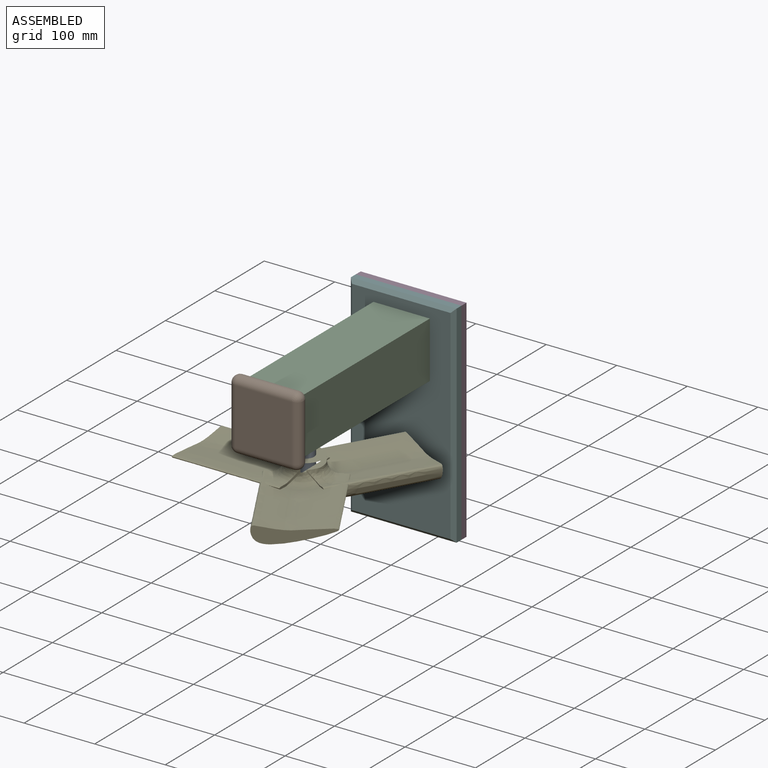
[diagram: assembled view]
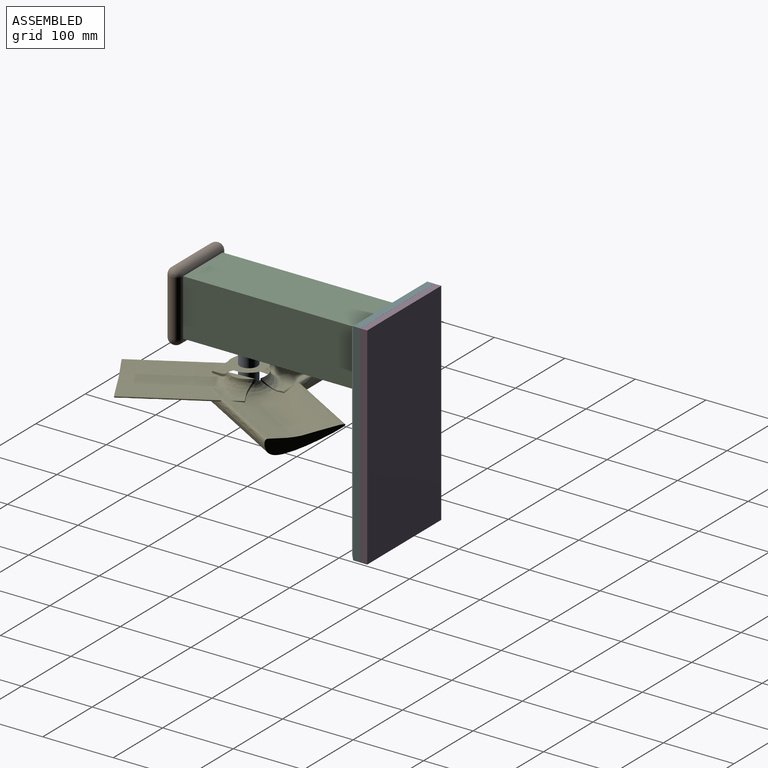
[diagram: assembled view, second angle]
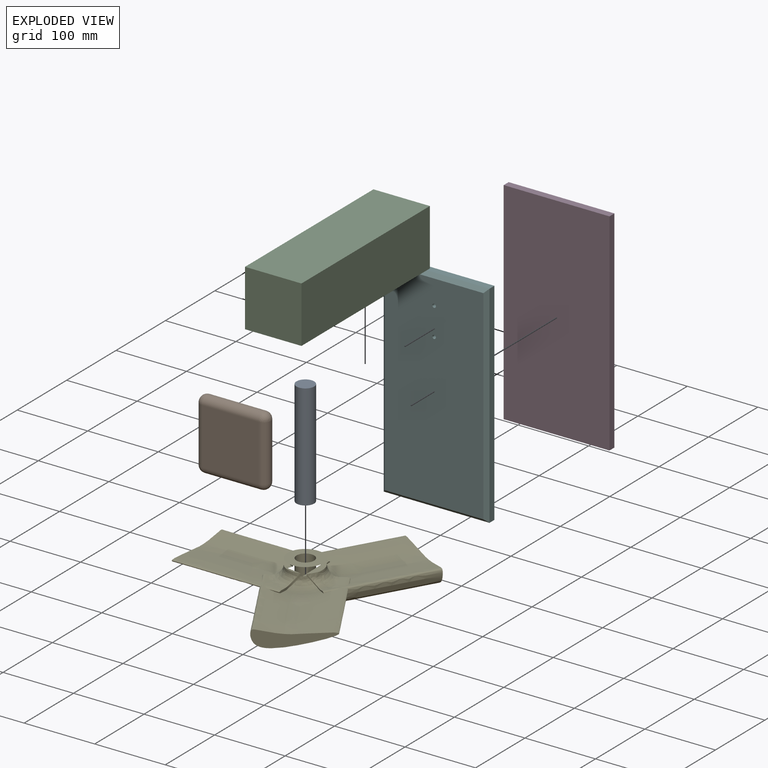
[diagram: exploded view]
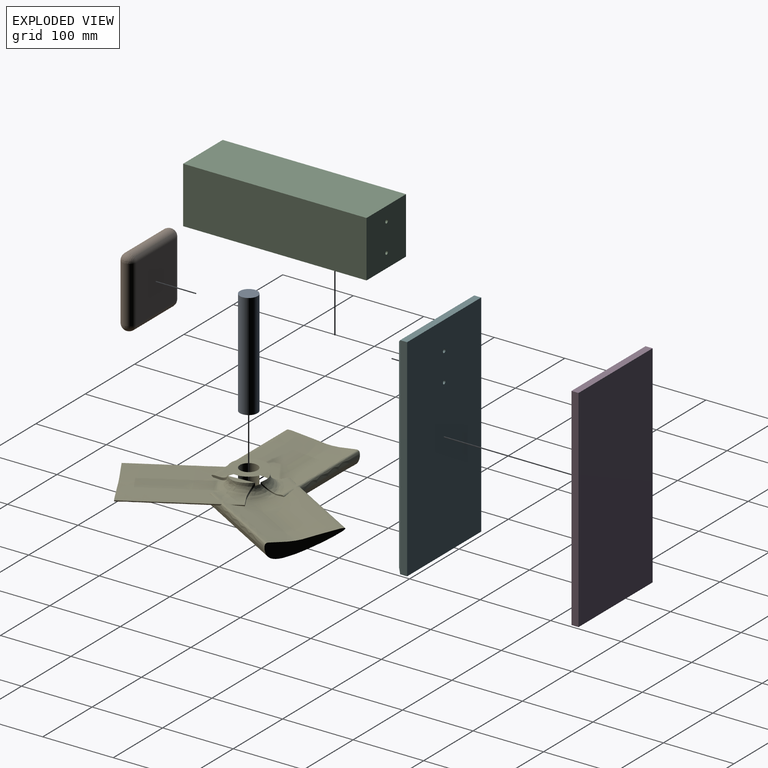
[diagram: exploded view, second angle]
ASSEMBLY  parts=6 mates=7
PART A: 3 faces, bbox 25x150x25 mm
  f0: cylinder r=12.5mm len=150mm, axis (0,1,0), area 11781mm2, adj f1,f2
  f1: plane 25x25mm, normal (0,-1,0), area 490.9mm2, adj f0
  f2: plane 25x25mm, normal (0,1,0), area 490.9mm2, adj f0
PART B: 10 faces, bbox 100x100x20 mm
  f0: plane 80x80mm, normal (0,0,1), area 6400mm2, adj f3,f4,f7,f8
  f1: plane 80x80mm, normal (0,0,-1), area 6400mm2, adj f3,f4,f7,f8
  f2: sphere r=10mm, area 314.2mm2, adj f3,f4
  f3: cylinder r=10mm len=80mm, axis (0,-1,0), area 2513.3mm2, adj f0,f1,f2,f5
  f4: cylinder r=10mm len=80mm, axis (-1,0,0), area 2513.3mm2, adj f0,f1,f2,f6
  f5: sphere r=10mm, area 314.2mm2, adj f3,f7
  f6: sphere r=10mm, area 314.2mm2, adj f4,f8
  f7: cylinder r=10mm len=80mm, axis (1,0,0), area 2513.3mm2, adj f0,f1,f5,f9
  f8: cylinder r=10mm len=80mm, axis (0,1,0), area 2513.3mm2, adj f0,f1,f6,f9
  f9: sphere r=10mm, area 314.2mm2, adj f7,f8
PART C: 12 faces, bbox 80x80x260 mm
  f0: plane 260x80mm, normal (0,1,0), area 20800mm2, adj f1,f3,f4,f5
  f1: plane 260x80mm, normal (-1,0,0), area 20800mm2, adj f0,f2,f4,f5
  f2: plane 260x80mm, normal (0,-1,0), area 20309.1mm2, adj f1,f3,f4,f5,f6
  f3: plane 260x80mm, normal (1,0,0), area 20800mm2, adj f0,f2,f4,f5
  f4: plane 80x80mm, normal (0,0,1), area 6400mm2, adj f0,f1,f2,f3
  f5: plane 80x80mm, normal (0,0,-1), area 6360.7mm2, adj f0,f1,f2,f3,f8,f10
  f6: cylinder r=12.5mm len=60mm, axis (0,-1,0), area 4712.4mm2, adj f2,f7
  f7: cone r=0mm half-angle=59deg, axis (0,-1,0), area 572.7mm2, adj f6
  f8: cylinder r=2.5mm len=15mm, axis (0,0,-1), area 235.6mm2, adj f5,f9
  f9: cone r=0mm half-angle=59deg, axis (0,0,-1), area 22.9mm2, adj f8
  f10: cylinder r=2.5mm len=15mm, axis (0,0,-1), area 235.6mm2, adj f5,f11
  f11: cone r=0mm half-angle=59deg, axis (0,0,-1), area 22.9mm2, adj f10
PART D: 6 faces, bbox 300x150x10 mm
  f0: plane 300x10mm, normal (0,1,0), area 3000mm2, adj f1,f3,f4,f5
  f1: plane 150x10mm, normal (-1,0,0), area 1500mm2, adj f0,f2,f4,f5
  f2: plane 300x10mm, normal (0,-1,0), area 3000mm2, adj f1,f3,f4,f5
  f3: plane 150x10mm, normal (1,0,0), area 1500mm2, adj f0,f2,f4,f5
  f4: plane 300x150mm, normal (0,0,1), area 45000mm2, adj f0,f1,f2,f3
  f5: plane 300x150mm, normal (0,0,-1), area 45000mm2, adj f0,f1,f2,f3
PART E: 50 faces, bbox 378.1x160.2x420.3 mm
  f0: cylinder r=25mm len=13.36mm, axis (0,1,0), area 27.9mm2, adj f1,f2,f3
  f1: plane 50.04x50.04mm, normal (0,-1,0), area 1472.6mm2, adj f0,f4,f5,f6,f7,f8,f9
  f2: cylinder r=15mm len=22.89mm, axis (0,1,0), area 124.9mm2, adj f0,f3,f9,f10,f11
  f3: bspline ~39.64x23.62mm, area 625.3mm2, adj f0,f2,f5,f10,f12
  f4: cylinder r=12.5mm len=60mm, axis (0,1,0), area 4712.4mm2, adj f1,f13
  f5: bspline ~54.7x29.61mm, area 860.4mm2, adj f1,f3,f12,f14
  f6: cylinder r=25mm len=10.67mm, axis (0,1,0), area 27.9mm2, adj f1,f14,f15
  f7: bspline ~53.43x23.78mm, area 860.4mm2, adj f1,f15,f16,f17
  f8: cylinder r=25mm len=12.47mm, axis (0,1,0), area 27.9mm2, adj f1,f16,f18
  f9: bspline ~44.95x38.98mm, area 860.4mm2, adj f1,f2,f11,f18
  f10: plane 11.32x10.47mm, normal (-0.5,0,-0.87), area 76.3mm2, adj f2,f3,f11,f12
  f11: extruded ~183.82x165.98mm, area 27405.8mm2, adj f2,f9,f10,f12,f17,f18,f19,f20
  f12: extruded ~152.4x103.67mm, area 27405.7mm2, adj f3,f5,f10,f11,f14,f17,f25,f27
  f13: plane 150x150mm, normal (0,1,0), area 1472.6mm2, adj f4,f34
  f14: cylinder r=15mm len=22.89mm, axis (0,1,0), area 124.9mm2, adj f5,f6,f12,f15,f31
  f15: bspline ~38.04x25.48mm, area 625.3mm2, adj f6,f7,f14,f17,f31
  f16: cylinder r=15mm len=22.89mm, axis (0,1,0), area 124.9mm2, adj f7,f8,f17,f18,f26
  f17: extruded ~183.82x165.98mm, area 27405.7mm2, adj f7,f11,f12,f15,f16,f20,f26,f30
  f18: bspline ~33.41x31.31mm, area 625.3mm2, adj f8,f9,f11,f16,f26
  f19: plane 94.83x56.36mm, normal (0.5,0,0.87), area 1465.4mm2, adj f11
  f20: plane 11.84x7.04mm, normal (-0.5,0,0.87), area 19.8mm2, adj f11,f17,f21,f39,f40
  f21: bspline ~40.53x30.5mm, area 621.4mm2, adj f11,f20,f22,f40,f41,f42
  f22: plane 16.27x4.23mm, normal (1,0,0), area 49mm2, adj f11,f21,f23,f41,f43
  f23: extruded ~28.2x22.49mm, area 401mm2, adj f11,f22,f24,f43
  f24: bspline ~30.11x26.34mm, area 324.7mm2, adj f11,f23,f25,f42,f43,f44
  f25: plane 11.84x7.04mm, normal (-0.5,0,-0.87), area 19.8mm2, adj f11,f12,f24,f33,f44
  f26: plane 11.32x10.47mm, normal (-0.5,0,0.87), area 76.3mm2, adj f11,f16,f17,f18
  f27: plane 14.17x8.44mm, normal (-0.5,0,0.87), area 49mm2, adj f12,f28,f33,f45,f46
  f28: extruded ~35.66x33.58mm, area 401mm2, adj f12,f27,f29,f46
  f29: bspline ~31x20.26mm, area 324.7mm2, adj f12,f28,f30,f42,f46,f47
  f30: plane 13.6x2.73mm, normal (1,0,0), area 19.8mm2, adj f12,f17,f29,f36,f47
  f31: plane 13.01x10.47mm, normal (1,0,0), area 76.3mm2, adj f12,f14,f15,f17
  f32: plane 108.91x29.1mm, normal (-1,0,0), area 1465.4mm2, adj f12
  f33: bspline ~46.68x19.86mm, area 621.4mm2, adj f12,f25,f27,f42,f44,f45
  f34: cylinder r=25mm len=34.38mm, axis (0,1,0), area 0mm2, adj f13
  f35: plane 94.83x56.36mm, normal (0.5,0,-0.87), area 1465.4mm2, adj f17
  f36: bspline ~40.33x30.81mm, area 621.4mm2, adj f17,f30,f37,f42,f47,f48
  f37: plane 14.17x8.44mm, normal (-0.5,0,-0.87), area 49mm2, adj f17,f36,f38,f48,f49
  f38: extruded ~35.66x33.58mm, area 401mm2, adj f17,f37,f39,f49
  f39: bspline ~30.02x27.43mm, area 324.7mm2, adj f17,f20,f38,f40,f42,f49
  f40: cylinder r=15mm len=16.73mm, axis (0,1,0), area 31mm2, adj f20,f21,f39,f42
  f41: cylinder r=15mm len=17.93mm, axis (0,1,0), area 65.6mm2, adj f21,f22,f42,f43
  f42: cylinder r=25mm len=50mm, axis (0,1,0), area 293.2mm2, adj f21,f24,f29,f33,f36,f39,f40,f41
  f43: bspline ~45.57x23.48mm, area 627.1mm2, adj f22,f23,f24,f41,f42
  f44: cylinder r=15mm len=15.52mm, axis (0,1,0), area 31mm2, adj f24,f25,f33,f42
  f45: cylinder r=15mm len=17.93mm, axis (0,1,0), area 65.6mm2, adj f27,f33,f42,f46
  f46: bspline ~37.26x34.74mm, area 627.1mm2, adj f27,f28,f29,f42,f45
  f47: cylinder r=15mm len=15.52mm, axis (0,1,0), area 31mm2, adj f29,f30,f36,f42
  f48: cylinder r=15mm len=17.93mm, axis (0,1,0), area 65.6mm2, adj f36,f37,f42,f49
  f49: bspline ~43.57x26.61mm, area 627.1mm2, adj f37,f38,f39,f42,f48
PART F: 12 faces, bbox 300x150x15 mm
  f0: plane 300x9.92mm, normal (0,1,0), area 2976mm2, adj f1,f3,f5,f8
  f1: plane 150x9.92mm, normal (-1,0,0), area 1488mm2, adj f0,f2,f5,f9
  f2: plane 300x9.92mm, normal (0,-1,0), area 2976mm2, adj f1,f3,f5,f7
  f3: plane 150x9.92mm, normal (1,0,0), area 1488mm2, adj f0,f2,f5,f6
  f4: plane 289.84x139.84mm, normal (0,0,1), area 40492mm2, adj f6,f7,f8,f9,f10,f11
  f5: plane 300x150mm, normal (0,0,-1), area 44960.7mm2, adj f0,f1,f2,f3,f10,f11
  f6: plane 150x5.08mm, normal (0.71,0,0.71), area 1041.1mm2, adj f3,f4,f7,f8
  f7: plane 300x5.08mm, normal (0,-0.71,0.71), area 2118.8mm2, adj f2,f4,f6,f9
  f8: plane 300x5.08mm, normal (0,0.71,0.71), area 2118.8mm2, adj f0,f4,f6,f9
  f9: plane 150x5.08mm, normal (-0.71,0,0.71), area 1041.1mm2, adj f1,f4,f7,f8
  f10: cylinder r=2.5mm len=15mm, axis (0,0,-1), area 235.6mm2, adj f4,f5
  f11: cylinder r=2.5mm len=15mm, axis (0,0,-1), area 235.6mm2, adj f4,f5
PLACE A rot(axis=(0,-0.71,0.71),180deg) t=(-74.38,-210.04,-189.92)mm
PLACE B rot(axis=(1,0,0),90deg) t=(-124.38,-275,-109.92)mm
PLACE C rot(axis=(1,0,0),90deg) t=(-114.38,-15,-99.92)mm
PLACE D rot(axis=(0.58,-0.58,0.58),120deg) t=(0,10,-300)mm
PLACE E rot(axis=(1,0,0),90deg) t=(-74.38,-210.04,-129.92)mm
PLACE F rot(axis=(0.58,0.58,-0.58),120deg) t=(-150,0,0.08)mm
MATE fastened E.f0 <-> A.f0  axis (0,0,1) through (-74.38,-210.04,-189.92)mm
MATE fastened F.f5 <-> D.f4  axis (0,1,0) through (-75,0,-150)mm
MATE planar C.f5 <-> F.f4  axis (0,1,0) through (-74.38,-15,-59.92)mm
MATE slider A.f0 <-> C.f6  axis (0,0,-1) through (-74.38,-210.04,-189.92)mm
MATE fastened B.f1 <-> C.f4  axis (0,1,0) through (-74.38,-275,-59.92)mm
MATE fastened A.f0 <-> C.f6  axis (0,0,1) through (-74.38,-210.04,-39.92)mm
MATE fastened C.f10 <-> F.f10  axis (0,1,0) through (-75,-15,-39.92)mm
